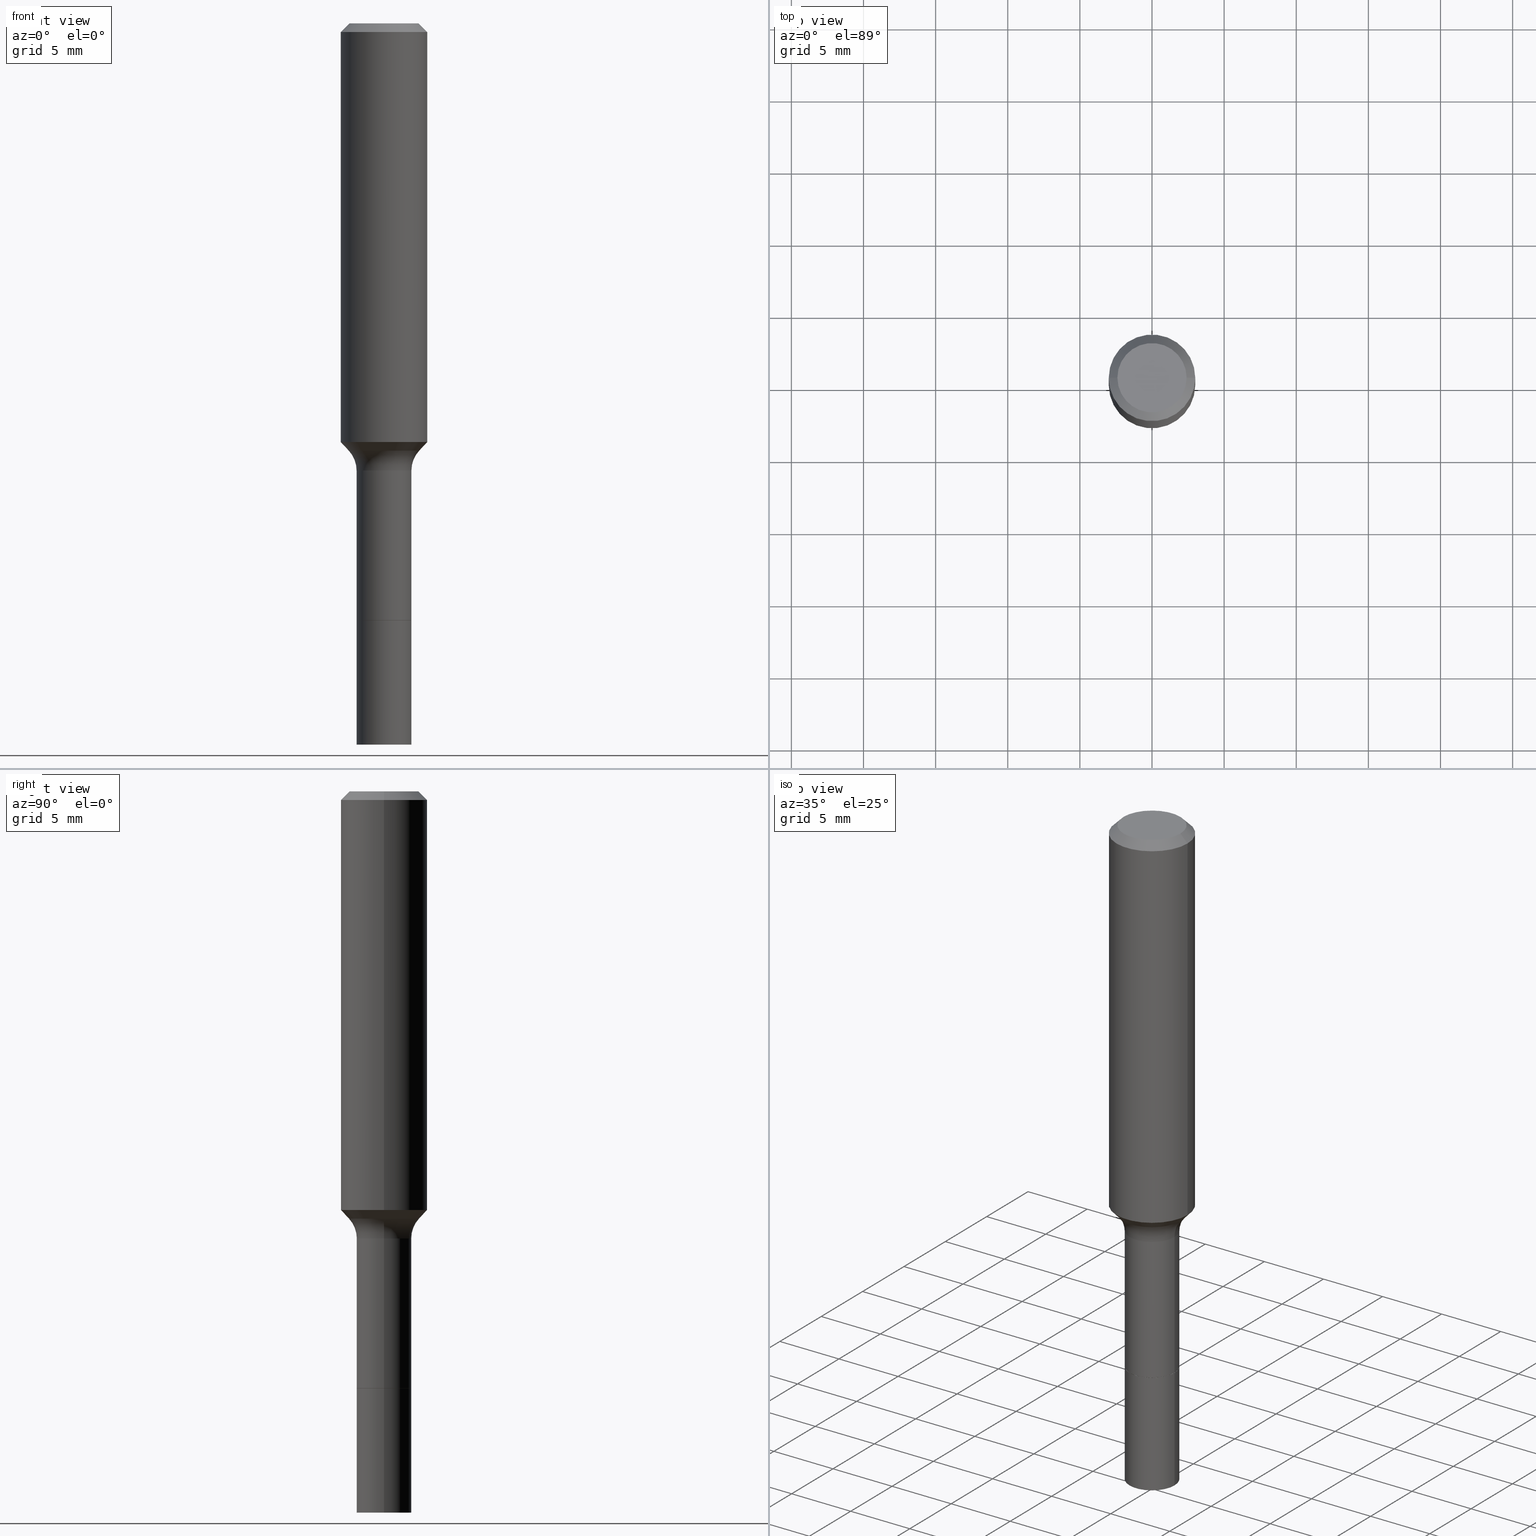
[diagram: canonical four-view strip — front | top / right | iso, engineering-drawing reading convention]
A machine part, canonical four-view strip (front | top / right | iso — engineering-drawing reading convention). The complete STEP part file that produces these views, byte-faithful:
ISO-10303-21;
HEADER;
FILE_DESCRIPTION (( 'STEP AP203' ),
    '1' );
FILE_NAME ('67083.STEP',
    '2025-04-01T15:27:55',
    ( '' ),
    ( '' ),
    'SwSTEP 2.0',
    'SolidWorks 2024',
    '' );
FILE_SCHEMA (( 'CONFIG_CONTROL_DESIGN' ));
ENDSEC;

DATA;
#1 = CARTESIAN_POINT ( 'NONE',  ( 3.983668685275588261E-29, -5.687623100975485819E-15, -1.629000000000000226 ) ) ;
#2 = COORDINATED_UNIVERSAL_TIME_OFFSET ( 5, 0, .BEHIND. ) ;
#3 = VERTEX_POINT ( 'NONE', #324 ) ;
#4 = AXIS2_PLACEMENT_3D ( 'NONE', #400, #467, #387 ) ;
#5 = EDGE_CURVE ( 'NONE', #3, #358, #87, .T. ) ;
#6 = CC_DESIGN_APPROVAL ( #431, ( #33 ) ) ;
#7 = ADVANCED_FACE ( 'NONE', ( #482 ), #172, .T. ) ;
#8 = CARTESIAN_POINT ( 'NONE',  ( 0.07430000000000000493, -6.208202968596995538E-15, -1.629499999999999948 ) ) ;
#9 = TOROIDAL_SURFACE ( 'NONE', #212, 0.1547999999999999654, 0.08000000000000001554 ) ;
#10 = CLOSED_SHELL ( 'NONE', ( #472, #52, #401, #518, #167, #20, #274, #439, #7, #13, #286, #142, #325, #487 ) ) ;
#11 = ORIENTED_EDGE ( 'NONE', *, *, #31, .T. ) ;
#12 = CYLINDRICAL_SURFACE ( 'NONE', #508, 0.07480000000000006088 ) ;
#13 = ADVANCED_FACE ( 'NONE', ( #81 ), #171, .T. ) ;
#14 = CARTESIAN_POINT ( 'NONE',  ( 3.984891419678680501E-29, -5.689368841644906534E-15, -1.629500000000000171 ) ) ;
#15 = ORIENTED_EDGE ( 'NONE', *, *, #418, .F. ) ;
#16 = DIRECTION ( 'NONE',  ( 1.000000000000000000, -6.982962677686268288E-15, 0.000000000000000000 ) ) ;
#17 = PERSON_AND_ORGANIZATION ( #122, #261 ) ;
#18 = AXIS2_PLACEMENT_3D ( 'NONE', #156, #464, #356 ) ;
#19 = ORIENTED_EDGE ( 'NONE', *, *, #5, .T. ) ;
#20 = ADVANCED_FACE ( 'NONE', ( #252 ), #446, .T. ) ;
#21 = DIRECTION ( 'NONE',  ( -0.7071067811868192443, 7.493145998871337081E-15, 0.7071067811862759012 ) ) ;
#22 = CIRCLE ( 'NONE', #231, 0.07480000000000000537 ) ;
#23 = CARTESIAN_POINT ( 'NONE',  ( 3.984891419678680501E-29, -5.689368841644906534E-15, -1.629500000000000171 ) ) ;
#24 = APPROVAL_DATE_TIME ( #116, #247 ) ;
#25 = EDGE_LOOP ( 'NONE', ( #473, #294, #454, #61 ) ) ;
#26 = FACE_OUTER_BOUND ( 'NONE', #101, .T. ) ;
#27 = CARTESIAN_POINT ( 'NONE',  ( 0.07480000000000000537, -6.211694449935839334E-15, -1.629500000000000171 ) ) ;
#28 = ORIENTED_EDGE ( 'NONE', *, *, #219, .T. ) ;
#29 = APPROVAL_ROLE ( '' ) ;
#30 = DIRECTION ( 'NONE',  ( -2.445468806185136597E-29, 3.491481338843145583E-15, 1.000000000000000000 ) ) ;
#31 = EDGE_CURVE ( 'NONE', #495, #232, #22, .T. ) ;
#32 = CIRCLE ( 'NONE', #515, 0.1180999999999999966 ) ;
#33 = PRODUCT_DEFINITION_FORMATION_WITH_SPECIFIED_SOURCE ( 'ANY', '', #58, .NOT_KNOWN. ) ;
#34 = DIRECTION ( 'NONE',  ( 1.000000000000000000, -6.982962677686265922E-15, 4.876176775795935793E-29 ) ) ;
#35 = ORIENTED_EDGE ( 'NONE', *, *, #95, .T. ) ;
#36 = DIRECTION ( 'NONE',  ( -0.7071067811865460184, 2.468850131082241283E-15, -0.7071067811865490160 ) ) ;
#37 = VERTEX_POINT ( 'NONE', #245 ) ;
#38 = DESIGN_CONTEXT ( 'detailed design', #488, 'design' ) ;
#39 = VERTEX_POINT ( 'NONE', #404 ) ;
#40 = EDGE_CURVE ( 'NONE', #37, #56, #410, .T. ) ;
#41 = EDGE_LOOP ( 'NONE', ( #163, #108, #139, #223 ) ) ;
#42 = CIRCLE ( 'NONE', #366, 0.08000000000000000167 ) ;
#43 = LOCAL_TIME ( 11, 27, 55.00000000000000000, #71 ) ;
#44 = VERTEX_POINT ( 'NONE', #127 ) ;
#45 = DATE_AND_TIME ( #442, #53 ) ;
#46 = ORIENTED_EDGE ( 'NONE', *, *, #143, .T. ) ;
#47 = ADVANCED_FACE ( 'NONE', ( #363 ), #174, .T. ) ;
#48 = EDGE_CURVE ( 'NONE', #56, #37, #309, .T. ) ;
#49 = ORIENTED_EDGE ( 'NONE', *, *, #501, .T. ) ;
#50 = ORIENTED_EDGE ( 'NONE', *, *, #403, .T. ) ;
#51 = CONICAL_SURFACE ( 'NONE', #272, 0.07430000000000000493, 0.7853981633978325272 ) ;
#52 = ADVANCED_FACE ( 'NONE', ( #391 ), #200, .T. ) ;
#53 = LOCAL_TIME ( 11, 27, 55.00000000000000000, #197 ) ;
#54 = DIRECTION ( 'NONE',  ( -1.000000000000000000, 6.982962677686265922E-15, -4.876176775795935793E-29 ) ) ;
#55 = DIRECTION ( 'NONE',  ( 0.7071067811865460184, -7.319954787623251312E-15, -0.7071067811865490160 ) ) ;
#56 = VERTEX_POINT ( 'NONE', #62 ) ;
#57 = CARTESIAN_POINT ( 'NONE',  ( 0.07479999999999997762, -5.223256082909326032E-16, 3.647380228295358762E-30 ) ) ;
#58 = PRODUCT ( '67083', '67083', '', ( #470 ) ) ;
#59 = CIRCLE ( 'NONE', #331, 0.07480000000000000537 ) ;
#60 =( GEOMETRIC_REPRESENTATION_CONTEXT ( 3 ) GLOBAL_UNCERTAINTY_ASSIGNED_CONTEXT ( ( #328 ) ) GLOBAL_UNIT_ASSIGNED_CONTEXT ( ( #233, #305, #503 ) ) REPRESENTATION_CONTEXT ( 'NONE', 'WORKASPACE' ) );
#61 = ORIENTED_EDGE ( 'NONE', *, *, #5, .F. ) ;
#62 = CARTESIAN_POINT ( 'NONE',  ( -0.07480000000000013027, -5.749688962230263552E-15, -1.968500000000000139 ) ) ;
#63 = ORIENTED_EDGE ( 'NONE', *, *, #320, .F. ) ;
#64 = FACE_OUTER_BOUND ( 'NONE', #181, .T. ) ;
#65 = EDGE_CURVE ( 'NONE', #329, #296, #370, .T. ) ;
#66 = PERSON_AND_ORGANIZATION_ROLE ( 'creator' ) ;
#67 = ORIENTED_EDGE ( 'NONE', *, *, #215, .T. ) ;
#68 = DIRECTION ( 'NONE',  ( -2.445468806185136597E-29, 3.491481338843145583E-15, 1.000000000000000000 ) ) ;
#69 = DIRECTION ( 'NONE',  ( -2.445468806185136597E-29, 3.491481338843145583E-15, 1.000000000000000000 ) ) ;
#70 = LINE ( 'NONE', #295, #271 ) ;
#71 = COORDINATED_UNIVERSAL_TIME_OFFSET ( 5, 0, .BEHIND. ) ;
#72 = VECTOR ( 'NONE', #177, 39.37007874015748143 ) ;
#73 = FACE_OUTER_BOUND ( 'NONE', #250, .T. ) ;
#74 = FACE_OUTER_BOUND ( 'NONE', #430, .T. ) ;
#75 = APPROVAL_STATUS ( 'not_yet_approved' ) ;
#76 = PLANE ( 'NONE',  #130 ) ;
#77 = CALENDAR_DATE ( 2025, 1, 4 ) ;
#78 = DIRECTION ( 'NONE',  ( 1.000000000000000000, -6.982962677686266711E-15, 0.000000000000000000 ) ) ;
#79 = CIRCLE ( 'NONE', #229, 0.09447999999999998066 ) ;
#80 = CYLINDRICAL_SURFACE ( 'NONE', #416, 0.07479999999999997762 ) ;
#81 = FACE_OUTER_BOUND ( 'NONE', #307, .T. ) ;
#82 = EDGE_CURVE ( 'NONE', #390, #275, #70, .T. ) ;
#83 = DIRECTION ( 'NONE',  ( 1.000000000000000000, -6.982962677686261977E-15, 0.000000000000000000 ) ) ;
#84 = EDGE_CURVE ( 'NONE', #386, #44, #42, .T. ) ;
#85 = ORIENTED_EDGE ( 'NONE', *, *, #376, .F. ) ;
#86 = AXIS2_PLACEMENT_3D ( 'NONE', #417, #256, #189 ) ;
#87 = CIRCLE ( 'NONE', #318, 0.07480000000000000537 ) ;
#88 = PERSON_AND_ORGANIZATION_ROLE ( 'creator' ) ;
#89 = DIRECTION ( 'NONE',  ( -2.445468806185136597E-29, 3.491481338843145583E-15, 1.000000000000000000 ) ) ;
#90 = CARTESIAN_POINT ( 'NONE',  ( 0.000000000000000000, 0.000000000000000000, 0.000000000000000000 ) ) ;
#91 = AXIS2_PLACEMENT_3D ( 'NONE', #14, #152, #461 ) ;
#92 = FACE_OUTER_BOUND ( 'NONE', #41, .T. ) ;
#93 = APPROVAL_PERSON_ORGANIZATION ( #146, #431, #388 ) ;
#94 = DIRECTION ( 'NONE',  ( 1.000000000000000000, -6.982962677686265133E-15, 0.000000000000000000 ) ) ;
#95 = EDGE_CURVE ( 'NONE', #232, #434, #145, .T. ) ;
#96 = VERTEX_POINT ( 'NONE', #298 ) ;
#97 = CARTESIAN_POINT ( 'NONE',  ( -0.1181000000000000660, 8.391509709326787887E-16, -5.809262341591047287E-30 ) ) ;
#98 = EDGE_LOOP ( 'NONE', ( #175, #444, #226, #334 ) ) ;
#99 = CARTESIAN_POINT ( 'NONE',  ( 0.09629170387046642743, -4.743259584573956502E-15, -1.165940131194999951 ) ) ;
#100 = CIRCLE ( 'NONE', #254, 0.1180999999999999966 ) ;
#101 = EDGE_LOOP ( 'NONE', ( #15, #46, #196, #440 ) ) ;
#102 = EDGE_CURVE ( 'NONE', #232, #495, #59, .T. ) ;
#103 = ADVANCED_FACE ( 'NONE', ( #64 ), #12, .T. ) ;
#104 = VERTEX_POINT ( 'NONE', #99 ) ;
#105 = DIRECTION ( 'NONE',  ( 1.000000000000000000, -6.982962677686265133E-15, 0.000000000000000000 ) ) ;
#106 = LINE ( 'NONE', #371, #352 ) ;
#107 = COORDINATED_UNIVERSAL_TIME_OFFSET ( 5, 0, .BEHIND. ) ;
#108 = ORIENTED_EDGE ( 'NONE', *, *, #84, .T. ) ;
#109 = CARTESIAN_POINT ( 'NONE',  ( 0.09629170387046644131, -4.743259584573956502E-15, -1.165940131194999951 ) ) ;
#110 = DIRECTION ( 'NONE',  ( 1.000000000000000000, -6.982962677686265133E-15, 0.000000000000000000 ) ) ;
#111 = DATE_AND_TIME ( #468, #208 ) ;
#112 = VECTOR ( 'NONE', #222, 39.37007874015748143 ) ;
#113 = EDGE_LOOP ( 'NONE', ( #489, #408, #206, #349 ) ) ;
#114 = CYLINDRICAL_SURFACE ( 'NONE', #159, 0.1181000000000000660 ) ;
#115 = MANIFOLD_SOLID_BREP ( 'Body-Move/Copy2[1]', #249 ) ;
#116 = DATE_AND_TIME ( #230, #43 ) ;
#117 = ADVANCED_FACE ( 'NONE', ( #423 ), #260, .F. ) ;
#118 = DIRECTION ( 'NONE',  ( -2.445468806185136597E-29, 3.491481338843145583E-15, 1.000000000000000000 ) ) ;
#119 = DIRECTION ( 'NONE',  ( -2.445468806185136597E-29, 3.491481338843145583E-15, 1.000000000000000000 ) ) ;
#120 = LINE ( 'NONE', #109, #310 ) ;
#121 = DIRECTION ( 'NONE',  ( -2.445468806185136877E-29, 3.491481338843145188E-15, 1.000000000000000000 ) ) ;
#122 = PERSON ( 'UNSPECIFIED', 'UNSPECIFIED', 'UNSPECIFIED', ('UNSPECIFIED'), ('UNSPECIFIED'), ('UNSPECIFIED') ) ;
#123 = ORIENTED_EDGE ( 'NONE', *, *, #336, .T. ) ;
#124 = CIRCLE ( 'NONE', #259, 0.09629170387046644131 ) ;
#125 = EDGE_CURVE ( 'NONE', #37, #358, #106, .T. ) ;
#126 = APPROVAL ( #75, 'UNSPECIFIED' ) ;
#127 = CARTESIAN_POINT ( 'NONE',  ( -0.07479999999999994986, -4.443002071168217249E-15, -1.220499999999999918 ) ) ;
#128 = PERSON_AND_ORGANIZATION ( #122, #261 ) ;
#129 = DIRECTION ( 'NONE',  ( 1.000000000000000000, -6.982962677686261977E-15, 0.000000000000000000 ) ) ;
#130 = AXIS2_PLACEMENT_3D ( 'NONE', #357, #151, #303 ) ;
#131 = VECTOR ( 'NONE', #185, 39.37007874015748854 ) ;
#132 = CC_DESIGN_PERSON_AND_ORGANIZATION_ASSIGNMENT ( #265, #66, ( #33 ) ) ;
#133 = LINE ( 'NONE', #411, #134 ) ;
#134 = VECTOR ( 'NONE', #21, 39.37007874015748143 ) ;
#135 = DIRECTION ( 'NONE',  ( 1.000000000000000000, -6.982962677686271444E-15, 0.000000000000000000 ) ) ;
#136 = DIRECTION ( 'NONE',  ( 2.445468806185136597E-29, -3.491481338843145583E-15, -1.000000000000000000 ) ) ;
#137 = SECURITY_CLASSIFICATION ( '', '', #506 ) ;
#138 = EDGE_LOOP ( 'NONE', ( #50, #28 ) ) ;
#139 = ORIENTED_EDGE ( 'NONE', *, *, #376, .T. ) ;
#140 = ORIENTED_EDGE ( 'NONE', *, *, #65, .F. ) ;
#141 = CARTESIAN_POINT ( 'NONE',  ( 7.545787641473140628E-46, -1.077338491108201769E-31, -3.085620075131671975E-17 ) ) ;
#142 = ADVANCED_FACE ( 'NONE', ( #301 ), #263, .F. ) ;
#143 = EDGE_CURVE ( 'NONE', #39, #469, #481, .T. ) ;
#144 = DIRECTION ( 'NONE',  ( -2.445468806185136877E-29, 3.491481338843145188E-15, 1.000000000000000000 ) ) ;
#145 = LINE ( 'NONE', #57, #112 ) ;
#146 = PERSON_AND_ORGANIZATION ( #122, #261 ) ;
#147 = AXIS2_PLACEMENT_3D ( 'NONE', #161, #432, #267 ) ;
#148 = EDGE_LOOP ( 'NONE', ( #213, #19 ) ) ;
#149 = EDGE_CURVE ( 'NONE', #104, #434, #496, .T. ) ;
#150 = CARTESIAN_POINT ( 'NONE',  ( 2.851270220716778580E-29, -4.070858210275671756E-15, -1.165940131194999951 ) ) ;
#151 = DIRECTION ( 'NONE',  ( 2.438088387897960049E-29, -3.491481338843145188E-15, -1.000000000000000000 ) ) ;
#152 = DIRECTION ( 'NONE',  ( 2.438088387897960049E-29, -3.491481338843145188E-15, -1.000000000000000000 ) ) ;
#153 = APPROVAL_STATUS ( 'not_yet_approved' ) ;
#154 = ORIENTED_EDGE ( 'NONE', *, *, #364, .F. ) ;
#155 = LENGTH_MEASURE_WITH_UNIT ( LENGTH_MEASURE( 0.02539999999999999897 ), #280 );
#156 = CARTESIAN_POINT ( 'NONE',  ( 2.984694677948959472E-29, -4.261352974058059028E-15, -1.220499999999999918 ) ) ;
#157 = COORDINATED_UNIVERSAL_TIME_OFFSET ( 5, 0, .BEHIND. ) ;
#158 = DIRECTION ( 'NONE',  ( 1.000000000000000000, -6.982962677686266711E-15, 4.876176775795936353E-29 ) ) ;
#159 = AXIS2_PLACEMENT_3D ( 'NONE', #234, #504, #158 ) ;
#160 = LOCAL_TIME ( 11, 27, 55.00000000000000000, #107 ) ;
#161 = CARTESIAN_POINT ( 'NONE',  ( 0.000000000000000000, 0.000000000000000000, 0.000000000000000000 ) ) ;
#162 = DIRECTION ( 'NONE',  ( 1.000000000000000000, -6.982962677686266711E-15, 4.876176775795935793E-29 ) ) ;
#163 = ORIENTED_EDGE ( 'NONE', *, *, #288, .F. ) ;
#164 = CARTESIAN_POINT ( 'NONE',  ( 3.984891419678679941E-29, -5.689368841644905745E-15, -1.629499999999999948 ) ) ;
#165 = DIRECTION ( 'NONE',  ( -2.445468806185136597E-29, 3.491481338843145583E-15, 1.000000000000000000 ) ) ;
#166 = ORIENTED_EDGE ( 'NONE', *, *, #102, .F. ) ;
#167 = ADVANCED_FACE ( 'NONE', ( #92 ), #9, .F. ) ;
#168 = EDGE_LOOP ( 'NONE', ( #499, #193, #462, #257 ) ) ;
#169 = ORIENTED_EDGE ( 'NONE', *, *, #403, .F. ) ;
#170 = VECTOR ( 'NONE', #121, 39.37007874015748143 ) ;
#171 = CYLINDRICAL_SURFACE ( 'NONE', #187, 0.1181000000000000660 ) ;
#172 = CONICAL_SURFACE ( 'NONE', #451, 0.09629170387046644131, 0.7504915783575644150 ) ;
#173 = DIRECTION ( 'NONE',  ( -2.445468806185136597E-29, 3.491481338843145583E-15, 1.000000000000000000 ) ) ;
#174 = CYLINDRICAL_SURFACE ( 'NONE', #207, 0.07480000000000006088 ) ;
#175 = ORIENTED_EDGE ( 'NONE', *, *, #84, .F. ) ;
#176 = CIRCLE ( 'NONE', #18, 0.07479999999999994986 ) ;
#177 = DIRECTION ( 'NONE',  ( 0.7071067811868192443, -2.468850131085102876E-15, 0.7071067811862759012 ) ) ;
#178 = AXIS2_PLACEMENT_3D ( 'NONE', #268, #69, #78 ) ;
#179 = ORIENTED_EDGE ( 'NONE', *, *, #65, .T. ) ;
#180 = CARTESIAN_POINT ( 'NONE',  ( 3.984891419678680501E-29, -5.689368841644906534E-15, -1.629500000000000171 ) ) ;
#181 = EDGE_LOOP ( 'NONE', ( #346, #188, #512, #402 ) ) ;
#182 = DIRECTION ( 'NONE',  ( 1.000000000000000000, -6.982962677686267499E-15, 4.875432709231658792E-29 ) ) ;
#183 = ORIENTED_EDGE ( 'NONE', *, *, #418, .T. ) ;
#184 = ORIENTED_EDGE ( 'NONE', *, *, #407, .T. ) ;
#185 = DIRECTION ( 'NONE',  ( -0.6819983600625003639, 7.399397606724292887E-15, 0.7313537016191685725 ) ) ;
#186 = AXIS2_PLACEMENT_3D ( 'NONE', #23, #238, #191 ) ;
#187 = AXIS2_PLACEMENT_3D ( 'NONE', #90, #210, #285 ) ;
#188 = ORIENTED_EDGE ( 'NONE', *, *, #381, .T. ) ;
#189 = DIRECTION ( 'NONE',  ( 1.000000000000000000, -6.982962677686264344E-15, 0.000000000000000000 ) ) ;
#190 = DIRECTION ( 'NONE',  ( -2.445468806185136597E-29, 3.491481338843145583E-15, 1.000000000000000000 ) ) ;
#191 = DIRECTION ( 'NONE',  ( 1.000000000000000000, -6.982962677686261977E-15, 0.000000000000000000 ) ) ;
#192 = ORIENTED_EDGE ( 'NONE', *, *, #501, .F. ) ;
#193 = ORIENTED_EDGE ( 'NONE', *, *, #82, .T. ) ;
#194 = DIRECTION ( 'NONE',  ( 1.000000000000000000, -6.982962677686268288E-15, 0.000000000000000000 ) ) ;
#195 = DIRECTION ( 'NONE',  ( 1.000000000000000000, -6.982962677686266711E-15, 0.000000000000000000 ) ) ;
#196 = ORIENTED_EDGE ( 'NONE', *, *, #412, .T. ) ;
#197 = COORDINATED_UNIVERSAL_TIME_OFFSET ( 5, 0, .BEHIND. ) ;
#198 = FACE_OUTER_BOUND ( 'NONE', #447, .T. ) ;
#199 = APPROVAL_DATE_TIME ( #459, #431 ) ;
#200 = CONICAL_SURFACE ( 'NONE', #484, 0.1180999999999999966, 0.7853981633974461696 ) ;
#201 = ORIENTED_EDGE ( 'NONE', *, *, #82, .F. ) ;
#202 = APPLICATION_PROTOCOL_DEFINITION ( 'international standard', 'config_control_design', 1994, #379 ) ;
#203 = CARTESIAN_POINT ( 'NONE',  ( -0.1181000000000001354, -3.150053590946154370E-15, -1.142553596806735738 ) ) ;
#204 = FACE_OUTER_BOUND ( 'NONE', #421, .T. ) ;
#205 = EDGE_LOOP ( 'NONE', ( #201, #169, #262, #211 ) ) ;
#206 = ORIENTED_EDGE ( 'NONE', *, *, #474, .T. ) ;
#207 = AXIS2_PLACEMENT_3D ( 'NONE', #374, #455, #413 ) ;
#208 = LOCAL_TIME ( 11, 27, 55.00000000000000000, #157 ) ;
#209 = DIRECTION ( 'NONE',  ( -2.445468806185136597E-29, 3.491481338843145583E-15, 1.000000000000000000 ) ) ;
#210 = DIRECTION ( 'NONE',  ( -2.445468806185136597E-29, 3.491481338843145583E-15, 1.000000000000000000 ) ) ;
#211 = ORIENTED_EDGE ( 'NONE', *, *, #320, .T. ) ;
#212 = AXIS2_PLACEMENT_3D ( 'NONE', #221, #452, #377 ) ;
#213 = ORIENTED_EDGE ( 'NONE', *, *, #338, .T. ) ;
#214 = AXIS2_PLACEMENT_3D ( 'NONE', #414, #486, #54 ) ;
#215 = EDGE_CURVE ( 'NONE', #329, #316, #287, .T. ) ;
#216 = DIRECTION ( 'NONE',  ( -2.445468806185136597E-29, 3.491481338843145583E-15, 1.000000000000000000 ) ) ;
#217 = CARTESIAN_POINT ( 'NONE',  ( -0.1547999999999999654, -3.161432819101424383E-15, -1.220499999999999918 ) ) ;
#218 = ORIENTED_EDGE ( 'NONE', *, *, #311, .F. ) ;
#219 = EDGE_CURVE ( 'NONE', #390, #96, #458, .T. ) ;
#220 = AXIS2_PLACEMENT_3D ( 'NONE', #255, #420, #497 ) ;
#221 = CARTESIAN_POINT ( 'NONE',  ( 2.984694677948959472E-29, -4.261352974058059028E-15, -1.220499999999999918 ) ) ;
#222 = DIRECTION ( 'NONE',  ( -2.445468806185136877E-29, 3.491481338843145188E-15, 1.000000000000000000 ) ) ;
#223 = ORIENTED_EDGE ( 'NONE', *, *, #149, .F. ) ;
#224 = PERSON_AND_ORGANIZATION ( #122, #261 ) ;
#225 = PERSON_AND_ORGANIZATION ( #122, #261 ) ;
#226 = ORIENTED_EDGE ( 'NONE', *, *, #149, .T. ) ;
#227 = DIRECTION ( 'NONE',  ( 1.000000000000000000, -6.982962677686268288E-15, 0.000000000000000000 ) ) ;
#228 = CARTESIAN_POINT ( 'NONE',  ( 5.776197320209328408E-31, -8.246878922347560526E-17, -0.02362000000000014435 ) ) ;
#229 = AXIS2_PLACEMENT_3D ( 'NONE', #368, #490, #182 ) ;
#230 = CALENDAR_DATE ( 2025, 1, 4 ) ;
#231 = AXIS2_PLACEMENT_3D ( 'NONE', #1, #89, #83 ) ;
#232 = VERTEX_POINT ( 'NONE', #456 ) ;
#233 =( CONVERSION_BASED_UNIT ( 'INCH', #155 ) LENGTH_UNIT ( ) NAMED_UNIT ( #427 ) );
#234 = CARTESIAN_POINT ( 'NONE',  ( 0.000000000000000000, 0.000000000000000000, 0.000000000000000000 ) ) ;
#235 = CARTESIAN_POINT ( 'NONE',  ( -0.07480000000000000537, -4.443002071168216460E-15, -1.629000000000000226 ) ) ;
#236 = LINE ( 'NONE', #306, #340 ) ;
#237 = EDGE_LOOP ( 'NONE', ( #49, #183, #166, #299 ) ) ;
#238 = DIRECTION ( 'NONE',  ( -2.445468806185136597E-29, 3.491481338843145583E-15, 1.000000000000000000 ) ) ;
#239 = EDGE_CURVE ( 'NONE', #104, #386, #405, .T. ) ;
#240 = CIRCLE ( 'NONE', #300, 0.1181000000000001354 ) ;
#241 = CONICAL_SURFACE ( 'NONE', #283, 0.07430000000000000493, 0.7853981633978325272 ) ;
#242 = CARTESIAN_POINT ( 'NONE',  ( -0.1180999999999999966, -1.196685704618475223E-15, -0.02362000000000014435 ) ) ;
#243 = ORIENTED_EDGE ( 'NONE', *, *, #95, .F. ) ;
#244 = EDGE_LOOP ( 'NONE', ( #354, #184, #218, #243 ) ) ;
#245 = CARTESIAN_POINT ( 'NONE',  ( 0.07480000000000011640, -7.395306623803666085E-15, -1.968500000000000139 ) ) ;
#246 = AXIS2_PLACEMENT_3D ( 'NONE', #509, #281, #34 ) ;
#247 = APPROVAL ( #429, 'UNSPECIFIED' ) ;
#248 = CC_DESIGN_APPROVAL ( #247, ( #137 ) ) ;
#249 = CLOSED_SHELL ( 'NONE', ( #103, #253, #47, #117 ) ) ;
#250 = EDGE_LOOP ( 'NONE', ( #406, #513, #337, #266 ) ) ;
#251 = CARTESIAN_POINT ( 'NONE',  ( 4.813905344975441835E-29, -6.872981015512731707E-15, -1.968500000000000139 ) ) ;
#252 = FACE_OUTER_BOUND ( 'NONE', #244, .T. ) ;
#253 = ADVANCED_FACE ( 'NONE', ( #204 ), #76, .T. ) ;
#254 = AXIS2_PLACEMENT_3D ( 'NONE', #396, #165, #502 ) ;
#255 = CARTESIAN_POINT ( 'NONE',  ( 3.984891419678679941E-29, -5.689368841644905745E-15, -1.629499999999999948 ) ) ;
#256 = DIRECTION ( 'NONE',  ( -2.445468806185136597E-29, 3.491481338843145583E-15, 1.000000000000000000 ) ) ;
#257 = ORIENTED_EDGE ( 'NONE', *, *, #284, .F. ) ;
#258 = DIRECTION ( 'NONE',  ( 7.105427357601001859E-15, 1.000000000000000000, -3.491481338843145583E-15 ) ) ;
#259 = AXIS2_PLACEMENT_3D ( 'NONE', #347, #30, #105 ) ;
#260 = PLANE ( 'NONE',  #91 ) ;
#261 = ORGANIZATION ( 'UNSPECIFIED', 'UNSPECIFIED', '' ) ;
#262 = ORIENTED_EDGE ( 'NONE', *, *, #284, .T. ) ;
#263 = PLANE ( 'NONE',  #214 ) ;
#264 = DIRECTION ( 'NONE',  ( -1.000000000000000000, 6.982962677686266711E-15, 0.000000000000000000 ) ) ;
#265 = PERSON_AND_ORGANIZATION ( #122, #261 ) ;
#266 = ORIENTED_EDGE ( 'NONE', *, *, #474, .F. ) ;
#267 = DIRECTION ( 'NONE',  ( 1.000000000000000000, 0.000000000000000000, 0.000000000000000000 ) ) ;
#268 = CARTESIAN_POINT ( 'NONE',  ( 2.984694677948959472E-29, -4.261352974058059028E-15, -1.220499999999999918 ) ) ;
#269 = DIRECTION ( 'NONE',  ( 1.000000000000000000, -6.982962677686265922E-15, 4.883557194083112901E-29 ) ) ;
#270 = CARTESIAN_POINT ( 'NONE',  ( -0.09629170387046642743, -3.386664503284444931E-15, -1.165940131194999951 ) ) ;
#271 = VECTOR ( 'NONE', #55, 39.37007874015748143 ) ;
#272 = AXIS2_PLACEMENT_3D ( 'NONE', #314, #507, #16 ) ;
#273 = DATE_TIME_ROLE ( 'classification_date' ) ;
#274 = ADVANCED_FACE ( 'NONE', ( #351 ), #80, .T. ) ;
#275 = VERTEX_POINT ( 'NONE', #422 ) ;
#276 = APPLICATION_PROTOCOL_DEFINITION ( 'international standard', 'config_control_design', 1994, #488 ) ;
#277 = PLANE ( 'NONE',  #246 ) ;
#278 = DATE_TIME_ROLE ( 'creation_date' ) ;
#279 = CARTESIAN_POINT ( 'NONE',  ( 0.000000000000000000, 0.000000000000000000, 0.000000000000000000 ) ) ;
#280 =( LENGTH_UNIT ( ) NAMED_UNIT ( * ) SI_UNIT ( $, .METRE. ) );
#281 = DIRECTION ( 'NONE',  ( -2.438088387897960049E-29, 3.491481338843145188E-15, 1.000000000000000000 ) ) ;
#282 = AXIS2_PLACEMENT_3D ( 'NONE', #383, #483, #135 ) ;
#283 = AXIS2_PLACEMENT_3D ( 'NONE', #164, #190, #194 ) ;
#284 = EDGE_CURVE ( 'NONE', #96, #296, #236, .T. ) ;
#285 = DIRECTION ( 'NONE',  ( 1.000000000000000000, -6.982962677686266711E-15, 4.876176775795936353E-29 ) ) ;
#286 = ADVANCED_FACE ( 'NONE', ( #393 ), #291, .T. ) ;
#287 = CIRCLE ( 'NONE', #445, 0.1181000000000001354 ) ;
#288 = EDGE_CURVE ( 'NONE', #386, #104, #124, .T. ) ;
#289 = CARTESIAN_POINT ( 'NONE',  ( 2.851270220716778580E-29, -4.070858210275671756E-15, -1.165940131194999951 ) ) ;
#290 = PRODUCT_DEFINITION ( 'UNKNOWN', '', #33, #38 ) ;
#291 = CONICAL_SURFACE ( 'NONE', #373, 0.1180999999999999966, 0.7853981633974461696 ) ;
#292 = AXIS2_PLACEMENT_3D ( 'NONE', #395, #68, #227 ) ;
#293 = CARTESIAN_POINT ( 'NONE',  ( 2.794079180385502557E-29, -3.989204561878833355E-15, -1.142553596806735738 ) ) ;
#294 = ORIENTED_EDGE ( 'NONE', *, *, #48, .T. ) ;
#295 = CARTESIAN_POINT ( 'NONE',  ( 0.1180999999999999966, -8.926936027602933910E-16, -0.02362000000000014435 ) ) ;
#296 = VERTEX_POINT ( 'NONE', #242 ) ;
#297 = DIRECTION ( 'NONE',  ( 1.000000000000000000, -6.982962677686267499E-15, 4.875432709231658792E-29 ) ) ;
#298 = CARTESIAN_POINT ( 'NONE',  ( -0.09447999999999998066, 7.009847083995354710E-16, -3.085620075132147757E-17 ) ) ;
#299 = ORIENTED_EDGE ( 'NONE', *, *, #412, .F. ) ;
#300 = AXIS2_PLACEMENT_3D ( 'NONE', #433, #308, #110 ) ;
#301 = FACE_OUTER_BOUND ( 'NONE', #138, .T. ) ;
#302 = CARTESIAN_POINT ( 'NONE',  ( 3.983668685275588261E-29, -5.687623100975485819E-15, -1.629000000000000226 ) ) ;
#303 = DIRECTION ( 'NONE',  ( -1.000000000000000000, 6.982962677686265922E-15, -4.876176775795935793E-29 ) ) ;
#304 = DIRECTION ( 'NONE',  ( -2.445468806185136877E-29, 3.491481338843145188E-15, 1.000000000000000000 ) ) ;
#305 =( NAMED_UNIT ( * ) PLANE_ANGLE_UNIT ( ) SI_UNIT ( $, .RADIAN. ) );
#306 = CARTESIAN_POINT ( 'NONE',  ( -0.1180999999999999966, 7.422191030112725094E-16, -0.02362000000000014435 ) ) ;
#307 = EDGE_LOOP ( 'NONE', ( #140, #67, #123, #63 ) ) ;
#308 = DIRECTION ( 'NONE',  ( -2.445468806185136597E-29, 3.491481338843145583E-15, 1.000000000000000000 ) ) ;
#309 = CIRCLE ( 'NONE', #86, 0.07480000000000011640 ) ;
#310 = VECTOR ( 'NONE', #344, 39.37007874015748854 ) ;
#311 = EDGE_CURVE ( 'NONE', #434, #44, #466, .T. ) ;
#312 = DIRECTION ( 'NONE',  ( 2.445468806185136597E-29, -3.491481338843145583E-15, -1.000000000000000000 ) ) ;
#313 = ORIENTED_EDGE ( 'NONE', *, *, #336, .F. ) ;
#314 = CARTESIAN_POINT ( 'NONE',  ( 3.984891419678679941E-29, -5.689368841644905745E-15, -1.629499999999999948 ) ) ;
#315 = LINE ( 'NONE', #475, #170 ) ;
#316 = VERTEX_POINT ( 'NONE', #389 ) ;
#317 = VECTOR ( 'NONE', #144, 39.37007874015748143 ) ;
#318 = AXIS2_PLACEMENT_3D ( 'NONE', #480, #209, #129 ) ;
#319 = DIRECTION ( 'NONE',  ( -2.445468806185136597E-29, 3.491481338843145583E-15, 1.000000000000000000 ) ) ;
#320 = EDGE_CURVE ( 'NONE', #296, #275, #32, .T. ) ;
#321 = DIRECTION ( 'NONE',  ( 1.000000000000000000, -6.982962677686264344E-15, 0.000000000000000000 ) ) ;
#322 = ADVANCED_BREP_SHAPE_REPRESENTATION ( '67083', ( #115, #448, #147 ), #60 ) ;
#323 = CC_DESIGN_PERSON_AND_ORGANIZATION_ASSIGNMENT ( #465, #436, ( #58 ) ) ;
#324 = CARTESIAN_POINT ( 'NONE',  ( -0.07480000000000000537, -5.749688962230264340E-15, -1.629500000000000171 ) ) ;
#325 = ADVANCED_FACE ( 'NONE', ( #198 ), #277, .F. ) ;
#326 = VECTOR ( 'NONE', #438, 39.37007874015748143 ) ;
#327 = CC_DESIGN_SECURITY_CLASSIFICATION ( #137, ( #33 ) ) ;
#328 = UNCERTAINTY_MEASURE_WITH_UNIT (LENGTH_MEASURE( 1.000000000000000082E-05 ), #233, 'distance_accuracy_value', 'NONE');
#329 = VERTEX_POINT ( 'NONE', #203 ) ;
#330 = LINE ( 'NONE', #8, #72 ) ;
#331 = AXIS2_PLACEMENT_3D ( 'NONE', #302, #380, #378 ) ;
#332 = DIRECTION ( 'NONE',  ( -2.445468806185136877E-29, 3.491481338843145188E-15, 1.000000000000000000 ) ) ;
#333 = CC_DESIGN_DATE_AND_TIME_ASSIGNMENT ( #348, #278, ( #290 ) ) ;
#334 = ORIENTED_EDGE ( 'NONE', *, *, #311, .T. ) ;
#335 = DIRECTION ( 'NONE',  ( -2.445468806185136597E-29, 3.491481338843145583E-15, 1.000000000000000000 ) ) ;
#336 = EDGE_CURVE ( 'NONE', #316, #275, #345, .T. ) ;
#337 = ORIENTED_EDGE ( 'NONE', *, *, #385, .F. ) ;
#338 = EDGE_CURVE ( 'NONE', #358, #3, #409, .T. ) ;
#339 = DIRECTION ( 'NONE',  ( 1.000000000000000000, -6.982962677686265133E-15, 0.000000000000000000 ) ) ;
#340 = VECTOR ( 'NONE', #36, 39.37007874015748143 ) ;
#341 = CIRCLE ( 'NONE', #292, 0.07430000000000000493 ) ;
#342 = PERSON_AND_ORGANIZATION_ROLE ( 'classification_officer' ) ;
#343 = ORIENTED_EDGE ( 'NONE', *, *, #385, .T. ) ;
#344 = DIRECTION ( 'NONE',  ( 0.6819983600625003639, -2.208861293262495130E-15, 0.7313537016191685725 ) ) ;
#345 = LINE ( 'NONE', #511, #326 ) ;
#346 = ORIENTED_EDGE ( 'NONE', *, *, #40, .T. ) ;
#347 = CARTESIAN_POINT ( 'NONE',  ( 2.851270220716778580E-29, -4.070858210275671756E-15, -1.165940131194999951 ) ) ;
#348 = DATE_AND_TIME ( #399, #477 ) ;
#349 = ORIENTED_EDGE ( 'NONE', *, *, #215, .F. ) ;
#350 = CARTESIAN_POINT ( 'NONE',  ( 0.07479999999999994986, -4.783678582348991828E-15, -1.220499999999999918 ) ) ;
#351 = FACE_OUTER_BOUND ( 'NONE', #372, .T. ) ;
#352 = VECTOR ( 'NONE', #332, 39.37007874015748143 ) ;
#353 = APPROVAL_PERSON_ORGANIZATION ( #224, #126, #29 ) ;
#354 = ORIENTED_EDGE ( 'NONE', *, *, #102, .T. ) ;
#355 = CARTESIAN_POINT ( 'NONE',  ( 2.984694677948959472E-29, -4.261352974058059028E-15, -1.220499999999999918 ) ) ;
#356 = DIRECTION ( 'NONE',  ( 1.000000000000000000, -6.982962677686266711E-15, 0.000000000000000000 ) ) ;
#357 = CARTESIAN_POINT ( 'NONE',  ( 4.813905344975441835E-29, -6.872981015512731707E-15, -1.968500000000000139 ) ) ;
#358 = VERTEX_POINT ( 'NONE', #27 ) ;
#359 = TOROIDAL_SURFACE ( 'NONE', #426, 0.1547999999999999654, 0.08000000000000001554 ) ;
#360 = CC_DESIGN_APPROVAL ( #126, ( #290 ) ) ;
#361 = CC_DESIGN_PERSON_AND_ORGANIZATION_ASSIGNMENT ( #17, #342, ( #137 ) ) ;
#362 = DIRECTION ( 'NONE',  ( -2.445468806185136597E-29, 3.491481338843145583E-15, 1.000000000000000000 ) ) ;
#363 = FACE_OUTER_BOUND ( 'NONE', #25, .T. ) ;
#364 = EDGE_CURVE ( 'NONE', #275, #296, #100, .T. ) ;
#365 = APPROVAL_DATE_TIME ( #45, #126 ) ;
#366 = AXIS2_PLACEMENT_3D ( 'NONE', #217, #258, #415 ) ;
#367 = LINE ( 'NONE', #492, #317 ) ;
#368 = CARTESIAN_POINT ( 'NONE',  ( 7.545787641473140628E-46, -1.077338491108201769E-31, -3.085620075131671975E-17 ) ) ;
#369 = DIRECTION ( 'NONE',  ( -2.445468806185136597E-29, 3.491481338843145583E-15, 1.000000000000000000 ) ) ;
#370 = LINE ( 'NONE', #97, #397 ) ;
#371 = CARTESIAN_POINT ( 'NONE',  ( 0.07480000000000006088, -6.211694449935840123E-15, -1.629500000000000171 ) ) ;
#372 = EDGE_LOOP ( 'NONE', ( #435, #11, #35, #85 ) ) ;
#373 = AXIS2_PLACEMENT_3D ( 'NONE', #437, #312, #471 ) ;
#374 = CARTESIAN_POINT ( 'NONE',  ( 3.984891419678680501E-29, -5.689368841644906534E-15, -1.629500000000000171 ) ) ;
#375 = CONICAL_SURFACE ( 'NONE', #398, 0.09629170387046644131, 0.7504915783575644150 ) ;
#376 = EDGE_CURVE ( 'NONE', #44, #434, #176, .T. ) ;
#377 = DIRECTION ( 'NONE',  ( 1.000000000000000000, -6.982962677686265922E-15, 4.883557194083112901E-29 ) ) ;
#378 = DIRECTION ( 'NONE',  ( 1.000000000000000000, -6.982962677686261977E-15, 0.000000000000000000 ) ) ;
#379 = APPLICATION_CONTEXT ( 'configuration controlled 3d designs of mechanical parts and assemblies' ) ;
#380 = DIRECTION ( 'NONE',  ( -2.445468806185136597E-29, 3.491481338843145583E-15, 1.000000000000000000 ) ) ;
#381 = EDGE_CURVE ( 'NONE', #56, #3, #315, .T. ) ;
#382 = FACE_OUTER_BOUND ( 'NONE', #98, .T. ) ;
#383 = CARTESIAN_POINT ( 'NONE',  ( 0.1547999999999999654, -5.342315596563893480E-15, -1.220499999999999918 ) ) ;
#384 = PERSON_AND_ORGANIZATION_ROLE ( 'design_supplier' ) ;
#385 = EDGE_CURVE ( 'NONE', #316, #329, #240, .T. ) ;
#386 = VERTEX_POINT ( 'NONE', #270 ) ;
#387 = DIRECTION ( 'NONE',  ( 1.000000000000000000, -6.982962677686265133E-15, 0.000000000000000000 ) ) ;
#388 = APPROVAL_ROLE ( '' ) ;
#389 = CARTESIAN_POINT ( 'NONE',  ( 0.1181000000000001354, -4.813892454113582407E-15, -1.142553596806735738 ) ) ;
#390 = VERTEX_POINT ( 'NONE', #428 ) ;
#391 = FACE_OUTER_BOUND ( 'NONE', #168, .T. ) ;
#392 = DIRECTION ( 'NONE',  ( -2.445468806185136597E-29, 3.491481338843145583E-15, 1.000000000000000000 ) ) ;
#393 = FACE_OUTER_BOUND ( 'NONE', #205, .T. ) ;
#394 = SHAPE_DEFINITION_REPRESENTATION ( #450, #322 ) ;
#395 = CARTESIAN_POINT ( 'NONE',  ( 3.984891419678679941E-29, -5.689368841644905745E-15, -1.629499999999999948 ) ) ;
#396 = CARTESIAN_POINT ( 'NONE',  ( 5.776197320209328408E-31, -8.246878922347560526E-17, -0.02362000000000014435 ) ) ;
#397 = VECTOR ( 'NONE', #304, 39.37007874015748143 ) ;
#398 = AXIS2_PLACEMENT_3D ( 'NONE', #150, #392, #339 ) ;
#399 = CALENDAR_DATE ( 2025, 1, 4 ) ;
#400 = CARTESIAN_POINT ( 'NONE',  ( 2.851270220716778580E-29, -4.070858210275671756E-15, -1.165940131194999951 ) ) ;
#401 = ADVANCED_FACE ( 'NONE', ( #74 ), #114, .T. ) ;
#402 = ORIENTED_EDGE ( 'NONE', *, *, #125, .F. ) ;
#403 = EDGE_CURVE ( 'NONE', #96, #390, #79, .T. ) ;
#404 = CARTESIAN_POINT ( 'NONE',  ( -0.07430000000000000493, -5.158786361801041451E-15, -1.629499999999999948 ) ) ;
#405 = CIRCLE ( 'NONE', #4, 0.09629170387046644131 ) ;
#406 = ORIENTED_EDGE ( 'NONE', *, *, #239, .T. ) ;
#407 = EDGE_CURVE ( 'NONE', #495, #44, #367, .T. ) ;
#408 = ORIENTED_EDGE ( 'NONE', *, *, #288, .T. ) ;
#409 = CIRCLE ( 'NONE', #186, 0.07480000000000000537 ) ;
#410 = CIRCLE ( 'NONE', #478, 0.07480000000000011640 ) ;
#411 = CARTESIAN_POINT ( 'NONE',  ( -0.07430000000000000493, -5.161435588975151863E-15, -1.629499999999999948 ) ) ;
#412 = EDGE_CURVE ( 'NONE', #469, #232, #330, .T. ) ;
#413 = DIRECTION ( 'NONE',  ( 1.000000000000000000, -6.982962677686269866E-15, 0.000000000000000000 ) ) ;
#414 = CARTESIAN_POINT ( 'NONE',  ( 3.772893820736570314E-46, -5.386692455541008845E-32, -1.542810037565835988E-17 ) ) ;
#415 = DIRECTION ( 'NONE',  ( -1.000000000000000000, 7.105427357601005014E-15, 0.000000000000000000 ) ) ;
#416 = AXIS2_PLACEMENT_3D ( 'NONE', #279, #460, #162 ) ;
#417 = CARTESIAN_POINT ( 'NONE',  ( 4.813905344975441835E-29, -6.872981015512731707E-15, -1.968500000000000139 ) ) ;
#418 = EDGE_CURVE ( 'NONE', #39, #495, #133, .T. ) ;
#419 = ORIENTED_EDGE ( 'NONE', *, *, #48, .F. ) ;
#420 = DIRECTION ( 'NONE',  ( -2.445468806185136597E-29, 3.491481338843145583E-15, 1.000000000000000000 ) ) ;
#421 = EDGE_LOOP ( 'NONE', ( #443, #419 ) ) ;
#422 = CARTESIAN_POINT ( 'NONE',  ( 0.1180999999999999966, -9.071566814582237199E-16, -0.02362000000000014435 ) ) ;
#423 = FACE_OUTER_BOUND ( 'NONE', #148, .T. ) ;
#424 = APPROVAL_ROLE ( '' ) ;
#425 = CARTESIAN_POINT ( 'NONE',  ( 0.07430000000000000493, -6.208202968596995538E-15, -1.629499999999999948 ) ) ;
#426 = AXIS2_PLACEMENT_3D ( 'NONE', #355, #118, #269 ) ;
#427 = DIMENSIONAL_EXPONENTS ( 1.000000000000000000, 0.000000000000000000, 0.000000000000000000, 0.000000000000000000, 0.000000000000000000, 0.000000000000000000, 0.000000000000000000 ) ;
#428 = CARTESIAN_POINT ( 'NONE',  ( 0.09447999999999998066, -7.704367267948738690E-16, -3.085620075131172158E-17 ) ) ;
#429 = APPROVAL_STATUS ( 'not_yet_approved' ) ;
#430 = EDGE_LOOP ( 'NONE', ( #343, #179, #154, #313 ) ) ;
#431 = APPROVAL ( #153, 'UNSPECIFIED' ) ;
#432 = DIRECTION ( 'NONE',  ( 0.000000000000000000, 0.000000000000000000, 1.000000000000000000 ) ) ;
#433 = CARTESIAN_POINT ( 'NONE',  ( 2.794079180385502557E-29, -3.989204561878833355E-15, -1.142553596806735738 ) ) ;
#434 = VERTEX_POINT ( 'NONE', #350 ) ;
#435 = ORIENTED_EDGE ( 'NONE', *, *, #407, .F. ) ;
#436 = PERSON_AND_ORGANIZATION_ROLE ( 'design_owner' ) ;
#437 = CARTESIAN_POINT ( 'NONE',  ( 5.776197320209328408E-31, -8.246878922347560526E-17, -0.02362000000000014435 ) ) ;
#438 = DIRECTION ( 'NONE',  ( -2.445468806185136877E-29, 3.491481338843145188E-15, 1.000000000000000000 ) ) ;
#439 = ADVANCED_FACE ( 'NONE', ( #382 ), #359, .F. ) ;
#440 = ORIENTED_EDGE ( 'NONE', *, *, #31, .F. ) ;
#441 = CC_DESIGN_PERSON_AND_ORGANIZATION_ASSIGNMENT ( #225, #384, ( #33 ) ) ;
#442 = CALENDAR_DATE ( 2025, 1, 4 ) ;
#443 = ORIENTED_EDGE ( 'NONE', *, *, #40, .F. ) ;
#444 = ORIENTED_EDGE ( 'NONE', *, *, #239, .F. ) ;
#445 = AXIS2_PLACEMENT_3D ( 'NONE', #293, #369, #94 ) ;
#446 = CYLINDRICAL_SURFACE ( 'NONE', #516, 0.07479999999999997762 ) ;
#447 = EDGE_LOOP ( 'NONE', ( #192, #491 ) ) ;
#448 = MANIFOLD_SOLID_BREP ( 'Body-Move/Copy2[2]', #10 ) ;
#449 = EDGE_CURVE ( 'NONE', #386, #329, #463, .T. ) ;
#450 = PRODUCT_DEFINITION_SHAPE ( 'NONE', 'NONE',  #290 ) ;
#451 = AXIS2_PLACEMENT_3D ( 'NONE', #289, #362, #514 ) ;
#452 = DIRECTION ( 'NONE',  ( -2.445468806185136597E-29, 3.491481338843145583E-15, 1.000000000000000000 ) ) ;
#453 = CC_DESIGN_PERSON_AND_ORGANIZATION_ASSIGNMENT ( #128, #88, ( #290 ) ) ;
#454 = ORIENTED_EDGE ( 'NONE', *, *, #125, .T. ) ;
#455 = DIRECTION ( 'NONE',  ( -2.445468806185136597E-29, 3.491481338843145583E-15, 1.000000000000000000 ) ) ;
#456 = CARTESIAN_POINT ( 'NONE',  ( 0.07480000000000000537, -6.209948709266417831E-15, -1.629000000000000226 ) ) ;
#457 = DIRECTION ( 'NONE',  ( 1.000000000000000000, -6.982962677686269866E-15, 0.000000000000000000 ) ) ;
#458 = CIRCLE ( 'NONE', #494, 0.09447999999999998066 ) ;
#459 = DATE_AND_TIME ( #77, #160 ) ;
#460 = DIRECTION ( 'NONE',  ( -2.445468806185136597E-29, 3.491481338843145583E-15, 1.000000000000000000 ) ) ;
#461 = DIRECTION ( 'NONE',  ( -1.000000000000000000, 6.982962677686265922E-15, -4.876176775795935793E-29 ) ) ;
#462 = ORIENTED_EDGE ( 'NONE', *, *, #364, .T. ) ;
#463 = LINE ( 'NONE', #510, #131 ) ;
#464 = DIRECTION ( 'NONE',  ( -2.445468806185136597E-29, 3.491481338843145583E-15, 1.000000000000000000 ) ) ;
#465 = PERSON_AND_ORGANIZATION ( #122, #261 ) ;
#466 = CIRCLE ( 'NONE', #178, 0.07479999999999994986 ) ;
#467 = DIRECTION ( 'NONE',  ( -2.445468806185136597E-29, 3.491481338843145583E-15, 1.000000000000000000 ) ) ;
#468 = CALENDAR_DATE ( 2025, 1, 4 ) ;
#469 = VERTEX_POINT ( 'NONE', #425 ) ;
#470 = MECHANICAL_CONTEXT ( 'NONE', #379, 'mechanical' ) ;
#471 = DIRECTION ( 'NONE',  ( -1.000000000000000000, 6.982962677686266711E-15, 0.000000000000000000 ) ) ;
#472 = ADVANCED_FACE ( 'NONE', ( #500 ), #241, .T. ) ;
#473 = ORIENTED_EDGE ( 'NONE', *, *, #381, .F. ) ;
#474 = EDGE_CURVE ( 'NONE', #104, #316, #120, .T. ) ;
#475 = CARTESIAN_POINT ( 'NONE',  ( -0.07480000000000006088, -5.157882875296350965E-15, -1.629500000000000171 ) ) ;
#476 = PRODUCT_RELATED_PRODUCT_CATEGORY ( 'detail', '', ( #58 ) ) ;
#477 = LOCAL_TIME ( 11, 27, 55.00000000000000000, #2 ) ;
#478 = AXIS2_PLACEMENT_3D ( 'NONE', #251, #173, #321 ) ;
#479 = DIRECTION ( 'NONE',  ( 1.000000000000000000, -6.982962677686266711E-15, 4.876176775795935793E-29 ) ) ;
#480 = CARTESIAN_POINT ( 'NONE',  ( 3.984891419678680501E-29, -5.689368841644906534E-15, -1.629500000000000171 ) ) ;
#481 = CIRCLE ( 'NONE', #220, 0.07430000000000000493 ) ;
#482 = FACE_OUTER_BOUND ( 'NONE', #113, .T. ) ;
#483 = DIRECTION ( 'NONE',  ( -6.982962677686266711E-15, -1.000000000000000000, 3.491481338843145583E-15 ) ) ;
#484 = AXIS2_PLACEMENT_3D ( 'NONE', #493, #136, #264 ) ;
#485 = APPROVAL_PERSON_ORGANIZATION ( #498, #247, #424 ) ;
#486 = DIRECTION ( 'NONE',  ( 2.438088387897960049E-29, -3.491481338843145188E-15, -1.000000000000000000 ) ) ;
#487 = ADVANCED_FACE ( 'NONE', ( #26 ), #51, .T. ) ;
#488 = APPLICATION_CONTEXT ( 'configuration controlled 3d designs of mechanical parts and assemblies' ) ;
#489 = ORIENTED_EDGE ( 'NONE', *, *, #449, .F. ) ;
#490 = DIRECTION ( 'NONE',  ( -2.445468806185136597E-29, 3.491481338843145583E-15, 1.000000000000000000 ) ) ;
#491 = ORIENTED_EDGE ( 'NONE', *, *, #143, .F. ) ;
#492 = CARTESIAN_POINT ( 'NONE',  ( -0.07479999999999997762, 5.314859663485547800E-16, -3.679363447510668680E-30 ) ) ;
#493 = CARTESIAN_POINT ( 'NONE',  ( 5.776197320209328408E-31, -8.246878922347560526E-17, -0.02362000000000014435 ) ) ;
#494 = AXIS2_PLACEMENT_3D ( 'NONE', #141, #216, #297 ) ;
#495 = VERTEX_POINT ( 'NONE', #235 ) ;
#496 = CIRCLE ( 'NONE', #282, 0.08000000000000000167 ) ;
#497 = DIRECTION ( 'NONE',  ( 1.000000000000000000, -6.982962677686268288E-15, 0.000000000000000000 ) ) ;
#498 = PERSON_AND_ORGANIZATION ( #122, #261 ) ;
#499 = ORIENTED_EDGE ( 'NONE', *, *, #219, .F. ) ;
#500 = FACE_OUTER_BOUND ( 'NONE', #237, .T. ) ;
#501 = EDGE_CURVE ( 'NONE', #469, #39, #341, .T. ) ;
#502 = DIRECTION ( 'NONE',  ( 1.000000000000000000, -6.982962677686266711E-15, 0.000000000000000000 ) ) ;
#503 =( NAMED_UNIT ( * ) SI_UNIT ( $, .STERADIAN. ) SOLID_ANGLE_UNIT ( ) );
#504 = DIRECTION ( 'NONE',  ( -2.445468806185136597E-29, 3.491481338843145583E-15, 1.000000000000000000 ) ) ;
#505 = CC_DESIGN_DATE_AND_TIME_ASSIGNMENT ( #111, #273, ( #137 ) ) ;
#506 = SECURITY_CLASSIFICATION_LEVEL ( 'unclassified' ) ;
#507 = DIRECTION ( 'NONE',  ( -2.445468806185136597E-29, 3.491481338843145583E-15, 1.000000000000000000 ) ) ;
#508 = AXIS2_PLACEMENT_3D ( 'NONE', #180, #335, #457 ) ;
#509 = CARTESIAN_POINT ( 'NONE',  ( 8.168603628363352052E-29, 3.019451633024921150E-16, -1.629500000000000171 ) ) ;
#510 = CARTESIAN_POINT ( 'NONE',  ( -0.09629170387046644131, -3.386664503284444931E-15, -1.165940131194999951 ) ) ;
#511 = CARTESIAN_POINT ( 'NONE',  ( 0.1181000000000000660, -8.246878922347485584E-16, 5.758764772215003944E-30 ) ) ;
#512 = ORIENTED_EDGE ( 'NONE', *, *, #338, .F. ) ;
#513 = ORIENTED_EDGE ( 'NONE', *, *, #449, .T. ) ;
#514 = DIRECTION ( 'NONE',  ( 1.000000000000000000, -6.982962677686265133E-15, 0.000000000000000000 ) ) ;
#515 = AXIS2_PLACEMENT_3D ( 'NONE', #228, #119, #195 ) ;
#516 = AXIS2_PLACEMENT_3D ( 'NONE', #517, #319, #479 ) ;
#517 = CARTESIAN_POINT ( 'NONE',  ( 0.000000000000000000, 0.000000000000000000, 0.000000000000000000 ) ) ;
#518 = ADVANCED_FACE ( 'NONE', ( #73 ), #375, .T. ) ;
ENDSEC;
END-ISO-10303-21;
